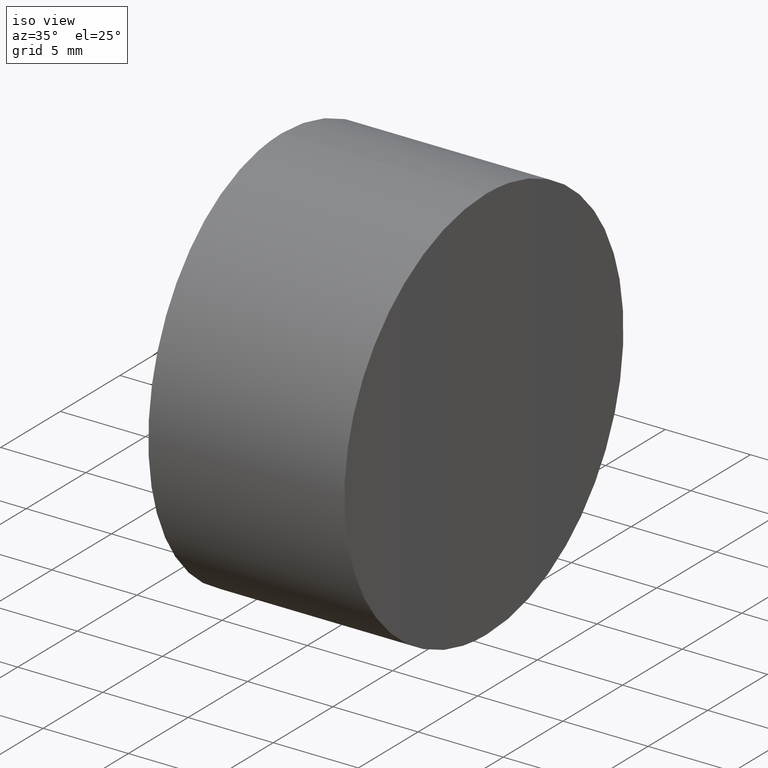
[diagram: clean part render]
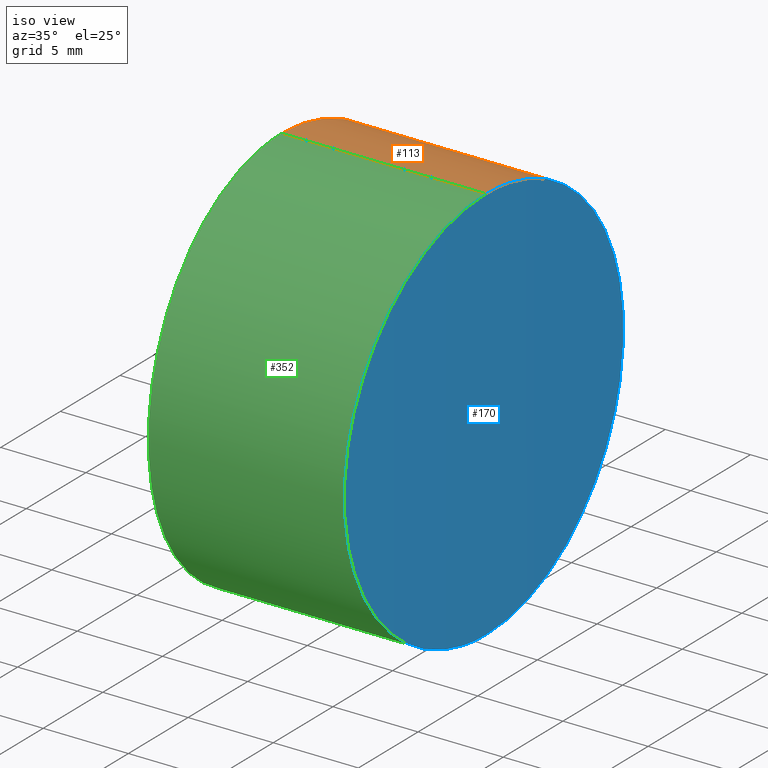
[diagram: same view with three faces highlighted in distinct colors, each labeled with its STEP entity id]
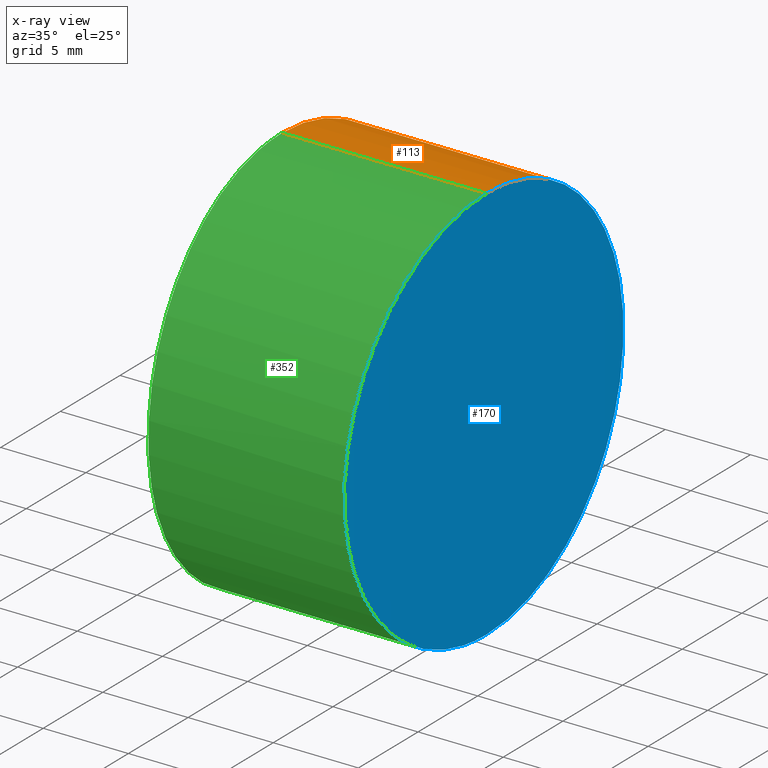
[diagram: x-ray of the same camera — body ghosted, the three highlighted faces saturated]
A machine part, iso view with three faces highlighted in distinct colors.
The next image is the same camera in x-ray (body ghosted, the three faces saturated) — at least one of them is partly hidden behind the body in this view.
Their STEP definitions:

[orange] entity #113 — the highlighted cylindrical surface (partial cylindrical patch) has radius 11.7 mm, axis along (-1, 0, 0).
#1 = CARTESIAN_POINT ( 'NONE',  ( 0.2583374684992448822, 9.935577560984455658, 17.89048050876180440 ) ) ;
#2 = CARTESIAN_POINT ( 'NONE',  ( 0.3401786562244256684, 11.39764381215303857, 14.37062356034076238 ) ) ;
#4 = CARTESIAN_POINT ( 'NONE',  ( 11.96579864609660149, 5.857284419357868366, 1.542928104321989125 ) ) ;
#6 = CARTESIAN_POINT ( 'NONE',  ( 11.90045432172797213, 9.935714473166820326, 5.509738525818470123 ) ) ;
#8 = CARTESIAN_POINT ( 'NONE',  ( 23.39999999999999858, 4.145316565267975364E-16, 0.000000000000000000 ) ) ;
#10 = CARTESIAN_POINT ( 'NONE',  ( 0.01828841934861864804, 2.670642402234625568, 0.3023606370246236241 ) ) ;
#11 = CARTESIAN_POINT ( 'NONE',  ( 11.89610216077167593, 10.15707122734554702, 17.55728553407527670 ) ) ;
#13 = CARTESIAN_POINT ( 'NONE',  ( 11.99078213179783781, 3.044950674873885266, 23.00329889858389620 ) ) ;
#23 = DIRECTION ( 'NONE',  ( -1.000000000000000000, 0.000000000000000000, 0.000000000000000000 ) ) ;
#25 = CARTESIAN_POINT ( 'NONE',  ( 0.3404086081460765967, 11.40148338416487483, 9.046450369288990601 ) ) ;
#26 = CARTESIAN_POINT ( 'NONE',  ( 0.08874062244635286256, 5.857751440177584534, 21.85679890421172544 ) ) ;
#28 = CARTESIAN_POINT ( 'NONE',  ( 0.1673559351319592325, 8.000520042296374257, 20.24558864000209013 ) ) ;
#29 = CARTESIAN_POINT ( 'NONE',  ( 4.559910881582112822E-14, 0.000000000000000000, 23.39999999999999858 ) ) ;
#30 = CARTESIAN_POINT ( 'NONE',  ( 0.1909753868514233455, 8.545590056044083838, 3.699481525973900009 ) ) ;
#31 = CARTESIAN_POINT ( 'NONE',  ( 11.91304112629796386, 9.294104164907743382, 4.551527113013929871 ) ) ;
#35 = CARTESIAN_POINT ( 'NONE',  ( 12.00000000000006573, 4.145316565267975857E-16, 5.685396098933329433E-48 ) ) ;
#37 = CARTESIAN_POINT ( 'NONE',  ( 0.02391706015313887004, 3.045399271237212879, 0.3968204477336191860 ) ) ;
#40 = CYLINDRICAL_SURFACE ( 'NONE', #271, 11.69999999999999929 ) ;
#44 = DIRECTION ( 'NONE',  ( 0.000000000000000000, 0.000000000000000000, 1.000000000000000000 ) ) ;
#46 = CARTESIAN_POINT ( 'NONE',  ( 11.97999998119463250, 4.494114777795298998, 22.52253198477025720 ) ) ;
#50 = CARTESIAN_POINT ( 'NONE',  ( 0.3345405857329071253, 11.30318434104827396, 14.74538161853043228 ) ) ;
#52 = CARTESIAN_POINT ( 'NONE',  ( 0.02357580842895731776, 3.024089344509405031, 23.00894419986126138 ) ) ;
#54 = CARTESIAN_POINT ( 'NONE',  ( 0.2688480717248624141, 10.13479930205118862, 17.55852158724343326 ) ) ;
#55 = CARTESIAN_POINT ( 'NONE',  ( 0.07002229378687654937, 5.183776251701241122, 1.204053391690247832 ) ) ;
#56 = CARTESIAN_POINT ( 'NONE',  ( 11.99091399820135706, 3.023586017320254449, 0.3909228197292762830 ) ) ;
#57 = VERTEX_POINT ( 'NONE', #341 ) ;
#58 = CARTESIAN_POINT ( 'NONE',  ( 11.86894414393554698, 11.39772222687059866, 9.029715755624447837 ) ) ;
#59 = CARTESIAN_POINT ( 'NONE',  ( 11.95330728867370418, 6.810779624940236587, 2.179009848429363405 ) ) ;
#63 = CARTESIAN_POINT ( 'NONE',  ( 11.91296101096698834, 9.291744005721012556, 18.82053955101963538 ) ) ;
#64 = ORIENTED_EDGE ( 'NONE', *, *, #227, .F. ) ;
#74 = CARTESIAN_POINT ( 'NONE',  ( 23.39999999999999858, -1.018305098475605649E-15, 11.69999999999999929 ) ) ;
#79 = CARTESIAN_POINT ( 'NONE',  ( 0.2024080958568977018, 8.809708700882115551, 19.43696692579699459 ) ) ;
#83 = CARTESIAN_POINT ( 'NONE',  ( 0.3065224976294609882, 10.82231276533389064, 16.19463903635429602 ) ) ;
#86 = CARTESIAN_POINT ( 'NONE',  ( 11.87098187852445008, 11.30907647843933539, 14.72358862174431593 ) ) ;
#87 = CARTESIAN_POINT ( 'NONE',  ( 11.87111374453593982, 11.30329961268162542, 8.655051954286340887 ) ) ;
#88 = CARTESIAN_POINT ( 'NONE',  ( 0.1559232875207755553, 7.736971049307275194, 2.890295123050315773 ) ) ;
#90 = CARTESIAN_POINT ( 'NONE',  ( 0.1326854371482225070, 7.148655793256581070, 2.406038564346927977 ) ) ;
#93 = CARTESIAN_POINT ( 'NONE',  ( 11.96549485134939061, 5.858213471806535289, 21.83497988866299622 ) ) ;
#97 = VECTOR ( 'NONE', #23, 1000.000000000000000 ) ;
#110 = CARTESIAN_POINT ( 'NONE',  ( 0.3538071033457206305, 11.62419979259791170, 10.16749382059844109 ) ) ;
#112 = CARTESIAN_POINT ( 'NONE',  ( 0.2371931424065522320, 9.520715865793969002, 4.888838393415191774 ) ) ;
#113 = ADVANCED_FACE ( 'NONE', ( #326 ), #40, .T. ) ;
#115 = CARTESIAN_POINT ( 'NONE',  ( 4.571769177407550517E-14, -2.541307647570762922E-32, 2.919881234129970241E-16 ) ) ;
#117 = CARTESIAN_POINT ( 'NONE',  ( 11.86369884757748494, 11.62423443815388069, 13.23218826134368697 ) ) ;
#118 = EDGE_LOOP ( 'NONE', ( #64, #236, #150, #205 ) ) ;
#120 = CARTESIAN_POINT ( 'NONE',  ( 11.92640016217320564, 8.545699694344646602, 19.70040565603710903 ) ) ;
#122 = CARTESIAN_POINT ( 'NONE',  ( 11.99819417617646700, 1.536662865378972231, 23.32422583959712270 ) ) ;
#123 = DIRECTION ( 'NONE',  ( -1.000000000000000000, 0.000000000000000000, 0.000000000000000000 ) ) ;
#136 = CARTESIAN_POINT ( 'NONE',  ( 0.3348818416738066905, 11.30893966401515272, 8.675893845185491671 ) ) ;
#137 = CARTESIAN_POINT ( 'NONE',  ( 0.004683139493605934997, 1.532484183187763138, 23.32420284880145545 ) ) ;
#138 = CARTESIAN_POINT ( 'NONE',  ( 0.03661705291089771552, 3.758815639899374617, 22.78641692632920979 ) ) ;
#142 = CARTESIAN_POINT ( 'NONE',  ( 0.05189326580756584845, 4.494652495588690400, 0.8776927926483676368 ) ) ;
#144 = B_SPLINE_CURVE_WITH_KNOTS ( 'NONE', 3,
 ( #29, #257, #137, #309, #52, #138, #311, #278, #26, #332, #228, #335, #28, #79, #362, #1, #54, #162, #83, #306, #50, #2, #281, #255, #277, #110, #25, #136, #307, #229, #337, #314, #112, #260, #231, #30, #88, #90, #233, #286, #55, #142, #171, #37, #10, #342, #316, #115 ),
 .UNSPECIFIED., .F., .F.,
 ( 4, 2, 2, 2, 2, 2, 2, 2, 2, 1, 2, 2, 2, 2, 2, 2, 2, 2, 2, 2, 2, 1, 2, 2, 4 ),
 ( 0.01828152708131330906, 0.02056672792505277736, 0.02170932834692251151, 0.02285192876879224566, 0.02513712961253172090, 0.02627973003440145505, 0.02742233045627119267, 0.02970753130001066444, 0.03085013172188040553, 0.03199273214375014662, 0.03313533256561987383, 0.03427793298748960105, 0.03656313383122906241, 0.03884833467496852377, 0.03999093509683825098, 0.04113353551870798513, 0.04341873636244743956, 0.04456133678431716677, 0.04570393720618688704, 0.04798913804992634147, 0.04913173847179606868, 0.05027433889366579589, 0.05141693931553552310, 0.05255953973740525031, 0.05484474058114470474 ),
 .UNSPECIFIED. ) ;
#145 = LINE ( 'NONE', #8, #344 ) ;
#146 = VERTEX_POINT ( 'NONE', #197 ) ;
#149 = CARTESIAN_POINT ( 'NONE',  ( 11.86369981649013994, 11.62422630583167837, 10.16334050048407178 ) ) ;
#150 = ORIENTED_EDGE ( 'NONE', *, *, #155, .F. ) ;
#151 = CARTESIAN_POINT ( 'NONE',  ( 11.92199646164367266, 8.809788044948872354, 3.963105866688136025 ) ) ;
#155 = EDGE_CURVE ( 'NONE', #201, #57, #144, .T. ) ;
#156 = CARTESIAN_POINT ( 'NONE',  ( 11.99295119334686177, 2.670287078555035887, 23.09772155744515132 ) ) ;
#160 = CARTESIAN_POINT ( 'NONE',  ( 11.96144692762755035, 6.190262531379142175, 21.63571380795257326 ) ) ;
#162 = CARTESIAN_POINT ( 'NONE',  ( 0.2883711932912189635, 10.49595232916330900, 16.88376473086750451 ) ) ;
#169 = CARTESIAN_POINT ( 'NONE',  ( 11.98588806299460607, 3.758232822529101735, 0.6133871211663781686 ) ) ;
#171 = CARTESIAN_POINT ( 'NONE',  ( 0.03698255608483859425, 3.777207114080399553, 0.6198812673615545776 ) ) ;
#173 = CARTESIAN_POINT ( 'NONE',  ( 11.86189348866509441, 11.69999972920494002, 12.47255012993240975 ) ) ;
#175 = CARTESIAN_POINT ( 'NONE',  ( 11.87600898028385643, 11.08661211210270103, 15.45823506775577627 ) ) ;
#177 = CARTESIAN_POINT ( 'NONE',  ( 11.92188515757921685, 8.802909189191723272, 19.41669488656452813 ) ) ;
#180 = EDGE_CURVE ( 'NONE', #146, #57, #145, .T. ) ;
#197 = CARTESIAN_POINT ( 'NONE',  ( 12.00000000000006573, 4.145316565267975857E-16, 5.685396098933329433E-48 ) ) ;
#200 = CARTESIAN_POINT ( 'NONE',  ( 11.94886146351681511, 7.148473463158253161, 20.99410369375474161 ) ) ;
#201 = VERTEX_POINT ( 'NONE', #258 ) ;
#202 = CARTESIAN_POINT ( 'NONE',  ( 11.89640585853640076, 10.13498059818199870, 5.841787745303263613 ) ) ;
#203 = DIRECTION ( 'NONE',  ( -1.000000000000000000, 0.000000000000000000, 0.000000000000000000 ) ) ;
#205 = ORIENTED_EDGE ( 'NONE', *, *, #329, .F. ) ;
#207 = CARTESIAN_POINT ( 'NONE',  ( 11.98297524554785909, 4.123375099309543046, 0.7439675968328939293 ) ) ;
#209 = CARTESIAN_POINT ( 'NONE',  ( 11.97301227319461603, 5.183327585761724698, 22.19617061425453031 ) ) ;
#212 = CARTESIAN_POINT ( 'NONE',  ( 11.98574674539198170, 3.776682911606437543, 22.78029587999899874 ) ) ;
#216 = CARTESIAN_POINT ( 'NONE',  ( 12.00000000000006573, -1.018305098475605649E-15, 23.39999999999999858 ) ) ;
#227 = EDGE_CURVE ( 'NONE', #146, #349, #363, .T. ) ;
#228 = CARTESIAN_POINT ( 'NONE',  ( 0.1324865233482153404, 7.120935428360549047, 20.99143569484871819 ) ) ;
#229 = CARTESIAN_POINT ( 'NONE',  ( 0.3142513886944202639, 10.95580707289939859, 7.576027508126629506 ) ) ;
#231 = CARTESIAN_POINT ( 'NONE',  ( 0.2026932021512520277, 8.802732466252770394, 3.983109517426784763 ) ) ;
#232 = CARTESIAN_POINT ( 'NONE',  ( 11.99304040900122459, 2.653074058219007103, 0.2984077886062099783 ) ) ;
#233 = CARTESIAN_POINT ( 'NONE',  ( 0.1000262550234437137, 6.190489251073986843, 1.764427921010063294 ) ) ;
#235 = CARTESIAN_POINT ( 'NONE',  ( 11.97337993679715673, 5.185559350148415625, 1.183943365429104055 ) ) ;
#236 = ORIENTED_EDGE ( 'NONE', *, *, #180, .T. ) ;
#237 = CARTESIAN_POINT ( 'NONE',  ( 11.94894148707029125, 7.120539056912982723, 2.408255608238688339 ) ) ;
#255 = CARTESIAN_POINT ( 'NONE',  ( 0.3584996436900924066, 11.70000178734283125, 12.47268321275936920 ) ) ;
#257 = CARTESIAN_POINT ( 'NONE',  ( 4.560398918237551329E-14, 0.7727127826928770205, 23.39999999999999858 ) ) ;
#258 = CARTESIAN_POINT ( 'NONE',  ( 4.559910881582112822E-14, 0.000000000000000000, 23.39999999999999858 ) ) ;
#259 = CARTESIAN_POINT ( 'NONE',  ( 11.94001782366196274, 7.716694686760754429, 2.897090627856640843 ) ) ;
#260 = CARTESIAN_POINT ( 'NONE',  ( 0.2258553752843850682, 9.291434513978856558, 4.579063104837104881 ) ) ;
#261 = CARTESIAN_POINT ( 'NONE',  ( 11.86885493619699439, 11.40159155744463959, 14.35307684444823551 ) ) ;
#263 = CARTESIAN_POINT ( 'NONE',  ( 11.88851963278133539, 10.51605588467203134, 16.88556081691490718 ) ) ;
#271 = AXIS2_PLACEMENT_3D ( 'NONE', #74, #123, #44 ) ;
#277 = CARTESIAN_POINT ( 'NONE',  ( 0.3584994244166042066, 11.69999821259460937, 10.92726266015646708 ) ) ;
#278 = CARTESIAN_POINT ( 'NONE',  ( 0.06907014426932693574, 5.186086964000831578, 22.21579465757199401 ) ) ;
#281 = CARTESIAN_POINT ( 'NONE',  ( 0.3538049416244755663, 11.62419739439252808, 13.23691041223250231 ) ) ;
#283 = CARTESIAN_POINT ( 'NONE',  ( 11.93990663900176230, 7.736894428032731419, 20.50978775668108511 ) ) ;
#284 = CARTESIAN_POINT ( 'NONE',  ( 11.87615029477704631, 11.08029665300275646, 7.923319338810872914 ) ) ;
#286 = CARTESIAN_POINT ( 'NONE',  ( 0.08952507690631315851, 5.858531242400483841, 1.565206311226251534 ) ) ;
#288 = CARTESIAN_POINT ( 'NONE',  ( 11.87892243440479412, 10.95603162582693635, 15.82337714776941162 ) ) ;
#291 = CARTESIAN_POINT ( 'NONE',  ( 11.93550294180889892, 8.000405588553174852, 3.154300234890239363 ) ) ;
#294 = CARTESIAN_POINT ( 'NONE',  ( 12.00000000000000888, 0.7725457323517803676, 23.39999999999998792 ) ) ;
#295 = LINE ( 'NONE', #319, #97 ) ;
#306 = CARTESIAN_POINT ( 'NONE',  ( 0.3214547361266597014, 11.08012404192007949, 15.47719163742938697 ) ) ;
#307 = CARTESIAN_POINT ( 'NONE',  ( 0.3218201948511544841, 11.08641206697578241, 7.941170150015326001 ) ) ;
#309 = CARTESIAN_POINT ( 'NONE',  ( 0.01805833903589188286, 2.653531519156004048, 23.10148763922043358 ) ) ;
#311 = CARTESIAN_POINT ( 'NONE',  ( 0.04417472697402874404, 4.123959763233888687, 22.65581191381212278 ) ) ;
#313 = CARTESIAN_POINT ( 'NONE',  ( 11.99819516585219326, 1.532184923233788076, 0.07576509983319604236 ) ) ;
#314 = CARTESIAN_POINT ( 'NONE',  ( 0.2696308357138724188, 10.15679542213603170, 5.842242846817536694 ) ) ;
#316 = CARTESIAN_POINT ( 'NONE',  ( 4.570526255913160557E-14, 0.7727082876776837361, 1.490777987167569090E-16 ) ) ;
#317 = CARTESIAN_POINT ( 'NONE',  ( 12.00000000000001243, 0.7725464155265415744, 1.084202172485511953E-16 ) ) ;
#318 = CARTESIAN_POINT ( 'NONE',  ( 11.88189831176743105, 10.82253278503196370, 7.205887108109723549 ) ) ;
#319 = CARTESIAN_POINT ( 'NONE',  ( 23.39999999999999858, -1.018305098475605649E-15, 23.39999999999999858 ) ) ;
#326 = FACE_OUTER_BOUND ( 'NONE', #118, .T. ) ;
#329 = EDGE_CURVE ( 'NONE', #349, #201, #295, .T. ) ;
#332 = CARTESIAN_POINT ( 'NONE',  ( 0.1211550322362877630, 6.811159226765689745, 21.22071761825332104 ) ) ;
#335 = CARTESIAN_POINT ( 'NONE',  ( 0.1556402619443736368, 7.716891152145591626, 20.50273193913835357 ) ) ;
#337 = CARTESIAN_POINT ( 'NONE',  ( 0.2893229383252903797, 10.51579033857531620, 6.513904697712418645 ) ) ;
#339 = CARTESIAN_POINT ( 'NONE',  ( 11.86189347587751364, 11.70000027079361971, 10.92745807228117272 ) ) ;
#340 = CARTESIAN_POINT ( 'NONE',  ( 11.88888727280963842, 10.49617138348649270, 6.516673960179250713 ) ) ;
#341 = CARTESIAN_POINT ( 'NONE',  ( 4.571769177407550517E-14, -2.541307647570762922E-32, 2.919881234129970241E-16 ) ) ;
#342 = CARTESIAN_POINT ( 'NONE',  ( 0.004685657068349319450, 1.536932628199142448, 0.07580567726889748947 ) ) ;
#344 = VECTOR ( 'NONE', #203, 1000.000000000000000 ) ;
#345 = CARTESIAN_POINT ( 'NONE',  ( 11.90859485044526345, 9.520989687313623051, 18.51078026442874958 ) ) ;
#349 = VERTEX_POINT ( 'NONE', #216 ) ;
#355 = CARTESIAN_POINT ( 'NONE',  ( 12.00000000000006573, -1.018305098475605649E-15, 23.39999999999999858 ) ) ;
#362 = CARTESIAN_POINT ( 'NONE',  ( 0.2256548676622555927, 9.293966178737345984, 18.84864982127933786 ) ) ;
#363 = B_SPLINE_CURVE_WITH_KNOTS ( 'NONE', 3,
 ( #35, #317, #313, #232, #56, #169, #207, #235, #4, #59, #237, #259, #291, #151, #31, #6, #202, #340, #318, #284, #87, #58, #149, #339, #173, #117, #261, #86, #175, #288, #263, #11, #345, #63, #177, #120, #283, #200, #160, #93, #209, #46, #212, #13, #156, #122, #294, #355 ),
 .UNSPECIFIED., .F., .F.,
 ( 4, 2, 2, 2, 2, 2, 2, 2, 2, 1, 2, 2, 2, 2, 2, 2, 2, 2, 2, 2, 2, 1, 2, 2, 4 ),
 ( -0.03655576912917313237, -0.03427103355859980466, -0.03312866577331313733, -0.03198629798802647695, -0.02970156241745314576, -0.02855919463216648191, -0.02741682684687981458, -0.02513209127630648340, -0.02398972349101981608, -0.02284735570573314528, -0.02170498792044647796, -0.02056262013515981063, -0.01827788456458647251, -0.01599314899401314133, -0.01485078120872647400, -0.01370841342343981015, -0.01142367785286648937, -0.01028131006757983940, -0.009138942282293185948, -0.006854206711719885992, -0.005711838926433236013, -0.004569471141146586035, -0.003427103355859939526, -0.002284735570573293018, 0.000000000000000000 ),
 .UNSPECIFIED. ) ;

[blue] entity #170 — the highlighted cylindrical surface (partial cylindrical patch) has radius 495.665 mm, axis along (-0, -0, -1).
#4 = CARTESIAN_POINT ( 'NONE',  ( 11.96579864609660149, 5.857284419357868366, 1.542928104321989125 ) ) ;
#6 = CARTESIAN_POINT ( 'NONE',  ( 11.90045432172797213, 9.935714473166820326, 5.509738525818470123 ) ) ;
#11 = CARTESIAN_POINT ( 'NONE',  ( 11.89610216077167593, 10.15707122734554702, 17.55728553407527670 ) ) ;
#13 = CARTESIAN_POINT ( 'NONE',  ( 11.99078213179783781, 3.044950674873885266, 23.00329889858389620 ) ) ;
#17 = CARTESIAN_POINT ( 'NONE',  ( 11.94894148707029302, -7.120539056912987164, 20.99174439176130846 ) ) ;
#19 = CARTESIAN_POINT ( 'NONE',  ( 11.90045432172797035, -9.935714473166823879, 17.89026147418152846 ) ) ;
#27 = CARTESIAN_POINT ( 'NONE',  ( 11.99295119334686177, -2.670287078555036331, 0.3022784425548426523 ) ) ;
#31 = CARTESIAN_POINT ( 'NONE',  ( 11.91304112629796386, 9.294104164907743382, 4.551527113013929871 ) ) ;
#32 = EDGE_LOOP ( 'NONE', ( #94, #116 ) ) ;
#33 = CARTESIAN_POINT ( 'NONE',  ( -483.6647798444420800, 0.000000000000000000, 23.39999999999999858 ) ) ;
#35 = CARTESIAN_POINT ( 'NONE',  ( 12.00000000000006573, 4.145316565267975857E-16, 5.685396098933329433E-48 ) ) ;
#41 = B_SPLINE_CURVE_WITH_KNOTS ( 'NONE', 3,
 ( #241, #213, #157, #69, #179, #186, #154, #243, #269, #302, #17, #125, #270, #183, #159, #19, #107, #253, #111, #196, #108, #310, #53, #282, #163, #230, #191, #84, #365, #225, #166, #141, #279, #252, #80, #254, #109, #338, #165, #364, #168, #226, #333, #139, #27, #85, #193, #51 ),
 .UNSPECIFIED., .F., .F.,
 ( 4, 2, 2, 2, 2, 2, 2, 2, 2, 1, 2, 2, 2, 2, 2, 2, 2, 2, 2, 2, 2, 1, 2, 2, 4 ),
 ( 0.000000000000000000, 0.002284737591002148922, 0.003427106386503222732, 0.004569475182004296976, 0.006854212773006442862, 0.007996581568507517973, 0.009138950364008593952, 0.01142368795501074764, 0.01256605675051183230, 0.01370842554601291348, 0.01485079434151399640, 0.01599316313701507758, 0.01827790072801724688, 0.02056263831901941619, 0.02170500711452050258, 0.02284737591002158896, 0.02513211350102376521, 0.02627448229652485159, 0.02741685109202593798, 0.02970158868302810729, 0.03084395747852919367, 0.03198632627403028006, 0.03312869506953137339, 0.03427106386503245977, 0.03655580145603462561 ),
 .UNSPECIFIED. ) ;
#46 = CARTESIAN_POINT ( 'NONE',  ( 11.97999998119463250, 4.494114777795298998, 22.52253198477025720 ) ) ;
#51 = CARTESIAN_POINT ( 'NONE',  ( 12.00000000000006573, 4.145316565267975857E-16, 5.685396098933329433E-48 ) ) ;
#53 = CARTESIAN_POINT ( 'NONE',  ( 11.86369981649014349, -11.62422630583168370, 13.23665949951593390 ) ) ;
#56 = CARTESIAN_POINT ( 'NONE',  ( 11.99091399820135706, 3.023586017320254449, 0.3909228197292762830 ) ) ;
#58 = CARTESIAN_POINT ( 'NONE',  ( 11.86894414393554698, 11.39772222687059866, 9.029715755624447837 ) ) ;
#59 = CARTESIAN_POINT ( 'NONE',  ( 11.95330728867370418, 6.810779624940236587, 2.179009848429363405 ) ) ;
#63 = CARTESIAN_POINT ( 'NONE',  ( 11.91296101096698834, 9.291744005721012556, 18.82053955101963538 ) ) ;
#69 = CARTESIAN_POINT ( 'NONE',  ( 11.99304040900122637, -2.653074058219009768, 23.10159221139378971 ) ) ;
#80 = CARTESIAN_POINT ( 'NONE',  ( 11.92188515757921863, -8.802909189191723272, 3.983305113435454015 ) ) ;
#84 = CARTESIAN_POINT ( 'NONE',  ( 11.87098187852445896, -11.30907647843933894, 8.676411378255673768 ) ) ;
#85 = CARTESIAN_POINT ( 'NONE',  ( 11.99819417617646700, -1.536662865378975118, 0.07577416040287825172 ) ) ;
#86 = CARTESIAN_POINT ( 'NONE',  ( 11.87098187852445008, 11.30907647843933539, 14.72358862174431593 ) ) ;
#87 = CARTESIAN_POINT ( 'NONE',  ( 11.87111374453593982, 11.30329961268162542, 8.655051954286340887 ) ) ;
#93 = CARTESIAN_POINT ( 'NONE',  ( 11.96549485134939061, 5.858213471806535289, 21.83497988866299622 ) ) ;
#94 = ORIENTED_EDGE ( 'NONE', *, *, #135, .T. ) ;
#107 = CARTESIAN_POINT ( 'NONE',  ( 11.89640585853640076, -10.13498059818200225, 17.55821225469673763 ) ) ;
#108 = CARTESIAN_POINT ( 'NONE',  ( 11.87111374453593626, -11.30329961268162542, 14.74494804571366302 ) ) ;
#109 = CARTESIAN_POINT ( 'NONE',  ( 11.93990663900175875, -7.736894428032726978, 2.890212243318909469 ) ) ;
#111 = CARTESIAN_POINT ( 'NONE',  ( 11.88189831176743105, -10.82253278503196370, 16.19411289189027414 ) ) ;
#114 = DIRECTION ( 'NONE',  ( -1.000000000000000000, 0.000000000000000000, 0.000000000000000000 ) ) ;
#116 = ORIENTED_EDGE ( 'NONE', *, *, #227, .T. ) ;
#117 = CARTESIAN_POINT ( 'NONE',  ( 11.86369884757748494, 11.62423443815388069, 13.23218826134368697 ) ) ;
#120 = CARTESIAN_POINT ( 'NONE',  ( 11.92640016217320564, 8.545699694344646602, 19.70040565603710903 ) ) ;
#122 = CARTESIAN_POINT ( 'NONE',  ( 11.99819417617646700, 1.536662865378972231, 23.32422583959712270 ) ) ;
#125 = CARTESIAN_POINT ( 'NONE',  ( 11.94001782366196451, -7.716694686760756206, 20.50290937214335685 ) ) ;
#135 = EDGE_CURVE ( 'NONE', #349, #146, #41, .T. ) ;
#139 = CARTESIAN_POINT ( 'NONE',  ( 11.99078213179783248, -3.044950674873887042, 0.3967011014160998772 ) ) ;
#141 = CARTESIAN_POINT ( 'NONE',  ( 11.89610216077167415, -10.15707122734554879, 5.842714465924718326 ) ) ;
#146 = VERTEX_POINT ( 'NONE', #197 ) ;
#148 = DIRECTION ( 'NONE',  ( -0.000000000000000000, -0.000000000000000000, -1.000000000000000000 ) ) ;
#149 = CARTESIAN_POINT ( 'NONE',  ( 11.86369981649013994, 11.62422630583167837, 10.16334050048407178 ) ) ;
#151 = CARTESIAN_POINT ( 'NONE',  ( 11.92199646164367266, 8.809788044948872354, 3.963105866688136025 ) ) ;
#154 = CARTESIAN_POINT ( 'NONE',  ( 11.98297524554785909, -4.123375099309543046, 22.65603240316709588 ) ) ;
#156 = CARTESIAN_POINT ( 'NONE',  ( 11.99295119334686177, 2.670287078555035887, 23.09772155744515132 ) ) ;
#157 = CARTESIAN_POINT ( 'NONE',  ( 11.99819516585218970, -1.532184923233790297, 23.32423490016680745 ) ) ;
#159 = CARTESIAN_POINT ( 'NONE',  ( 11.91304112629795675, -9.294104164907739829, 18.84847288698606604 ) ) ;
#160 = CARTESIAN_POINT ( 'NONE',  ( 11.96144692762755035, 6.190262531379142175, 21.63571380795257326 ) ) ;
#163 = CARTESIAN_POINT ( 'NONE',  ( 11.86189348866513349, -11.69999972920494713, 10.92744987006758883 ) ) ;
#165 = CARTESIAN_POINT ( 'NONE',  ( 11.96144692762755035, -6.190262531379135957, 1.764286192047425983 ) ) ;
#166 = CARTESIAN_POINT ( 'NONE',  ( 11.88851963278133539, -10.51605588467203312, 6.514439183085084295 ) ) ;
#168 = CARTESIAN_POINT ( 'NONE',  ( 11.97301227319461603, -5.183327585761721146, 1.203829385745459390 ) ) ;
#169 = CARTESIAN_POINT ( 'NONE',  ( 11.98588806299460607, 3.758232822529101735, 0.6133871211663781686 ) ) ;
#170 = ADVANCED_FACE ( 'NONE', ( #348 ), #199, .T. ) ;
#173 = CARTESIAN_POINT ( 'NONE',  ( 11.86189348866509441, 11.69999972920494002, 12.47255012993240975 ) ) ;
#175 = CARTESIAN_POINT ( 'NONE',  ( 11.87600898028385643, 11.08661211210270103, 15.45823506775577627 ) ) ;
#177 = CARTESIAN_POINT ( 'NONE',  ( 11.92188515757921685, 8.802909189191723272, 19.41669488656452813 ) ) ;
#179 = CARTESIAN_POINT ( 'NONE',  ( 11.99091399820135706, -3.023586017320257113, 23.00907718027072235 ) ) ;
#183 = CARTESIAN_POINT ( 'NONE',  ( 11.92199646164367266, -8.809788044948874131, 19.43689413331185989 ) ) ;
#186 = CARTESIAN_POINT ( 'NONE',  ( 11.98588806299460074, -3.758232822529103956, 22.78661287883361553 ) ) ;
#191 = CARTESIAN_POINT ( 'NONE',  ( 11.86885493619695708, -11.40159155744464847, 9.046923155551755968 ) ) ;
#193 = CARTESIAN_POINT ( 'NONE',  ( 12.00000000000001421, -0.7725470987019046332, -2.706740840337080291E-16 ) ) ;
#196 = CARTESIAN_POINT ( 'NONE',  ( 11.87615029477704276, -11.08029665300275823, 15.47668066118912478 ) ) ;
#197 = CARTESIAN_POINT ( 'NONE',  ( 12.00000000000006573, 4.145316565267975857E-16, 5.685396098933329433E-48 ) ) ;
#199 = CYLINDRICAL_SURFACE ( 'NONE', #366, 495.6647798444421937 ) ;
#200 = CARTESIAN_POINT ( 'NONE',  ( 11.94886146351681511, 7.148473463158253161, 20.99410369375474161 ) ) ;
#202 = CARTESIAN_POINT ( 'NONE',  ( 11.89640585853640076, 10.13498059818199870, 5.841787745303263613 ) ) ;
#207 = CARTESIAN_POINT ( 'NONE',  ( 11.98297524554785909, 4.123375099309543046, 0.7439675968328939293 ) ) ;
#209 = CARTESIAN_POINT ( 'NONE',  ( 11.97301227319461603, 5.183327585761724698, 22.19617061425453031 ) ) ;
#212 = CARTESIAN_POINT ( 'NONE',  ( 11.98574674539198170, 3.776682911606437543, 22.78029587999899874 ) ) ;
#213 = CARTESIAN_POINT ( 'NONE',  ( 12.00000000000000711, -0.7725464155265425736, 23.39999999999998792 ) ) ;
#216 = CARTESIAN_POINT ( 'NONE',  ( 12.00000000000006573, -1.018305098475605649E-15, 23.39999999999999858 ) ) ;
#225 = CARTESIAN_POINT ( 'NONE',  ( 11.87892243440479412, -10.95603162582694168, 7.576622852230584293 ) ) ;
#226 = CARTESIAN_POINT ( 'NONE',  ( 11.97999998119463250, -4.494114777795297222, 0.8774680152297440472 ) ) ;
#227 = EDGE_CURVE ( 'NONE', #146, #349, #363, .T. ) ;
#230 = CARTESIAN_POINT ( 'NONE',  ( 11.86369884757744408, -11.62423443815388602, 10.16781173865631160 ) ) ;
#232 = CARTESIAN_POINT ( 'NONE',  ( 11.99304040900122459, 2.653074058219007103, 0.2984077886062099783 ) ) ;
#235 = CARTESIAN_POINT ( 'NONE',  ( 11.97337993679715673, 5.185559350148415625, 1.183943365429104055 ) ) ;
#237 = CARTESIAN_POINT ( 'NONE',  ( 11.94894148707029125, 7.120539056912982723, 2.408255608238688339 ) ) ;
#241 = CARTESIAN_POINT ( 'NONE',  ( 12.00000000000006573, -1.018305098475605649E-15, 23.39999999999999858 ) ) ;
#243 = CARTESIAN_POINT ( 'NONE',  ( 11.97337993679715851, -5.185559350148419178, 22.21605663457089008 ) ) ;
#252 = CARTESIAN_POINT ( 'NONE',  ( 11.91296101096698834, -9.291744005721014332, 4.579460448980351650 ) ) ;
#253 = CARTESIAN_POINT ( 'NONE',  ( 11.88888727280964019, -10.49617138348649270, 16.88332603982074431 ) ) ;
#254 = CARTESIAN_POINT ( 'NONE',  ( 11.92640016217320564, -8.545699694344648378, 3.699594343962878451 ) ) ;
#259 = CARTESIAN_POINT ( 'NONE',  ( 11.94001782366196274, 7.716694686760754429, 2.897090627856640843 ) ) ;
#261 = CARTESIAN_POINT ( 'NONE',  ( 11.86885493619699439, 11.40159155744463959, 14.35307684444823551 ) ) ;
#263 = CARTESIAN_POINT ( 'NONE',  ( 11.88851963278133539, 10.51605588467203134, 16.88556081691490718 ) ) ;
#269 = CARTESIAN_POINT ( 'NONE',  ( 11.96579864609659971, -5.857284419357870142, 21.85707189567801123 ) ) ;
#270 = CARTESIAN_POINT ( 'NONE',  ( 11.93550294180890070, -8.000405588553180181, 20.24569976510975522 ) ) ;
#279 = CARTESIAN_POINT ( 'NONE',  ( 11.90859485044526167, -9.520989687313623051, 4.889219735571242786 ) ) ;
#282 = CARTESIAN_POINT ( 'NONE',  ( 11.86189347587755272, -11.70000027079362326, 12.47254192771882408 ) ) ;
#283 = CARTESIAN_POINT ( 'NONE',  ( 11.93990663900176230, 7.736894428032731419, 20.50978775668108511 ) ) ;
#284 = CARTESIAN_POINT ( 'NONE',  ( 11.87615029477704631, 11.08029665300275646, 7.923319338810872914 ) ) ;
#288 = CARTESIAN_POINT ( 'NONE',  ( 11.87892243440479412, 10.95603162582693635, 15.82337714776941162 ) ) ;
#291 = CARTESIAN_POINT ( 'NONE',  ( 11.93550294180889892, 8.000405588553174852, 3.154300234890239363 ) ) ;
#294 = CARTESIAN_POINT ( 'NONE',  ( 12.00000000000000888, 0.7725457323517803676, 23.39999999999998792 ) ) ;
#302 = CARTESIAN_POINT ( 'NONE',  ( 11.95330728867370240, -6.810779624940238364, 21.22099015157063917 ) ) ;
#310 = CARTESIAN_POINT ( 'NONE',  ( 11.86894414393555053, -11.39772222687060221, 14.37028424437554897 ) ) ;
#313 = CARTESIAN_POINT ( 'NONE',  ( 11.99819516585219326, 1.532184923233788076, 0.07576509983319604236 ) ) ;
#317 = CARTESIAN_POINT ( 'NONE',  ( 12.00000000000001243, 0.7725464155265415744, 1.084202172485511953E-16 ) ) ;
#318 = CARTESIAN_POINT ( 'NONE',  ( 11.88189831176743105, 10.82253278503196370, 7.205887108109723549 ) ) ;
#333 = CARTESIAN_POINT ( 'NONE',  ( 11.98574674539198881, -3.776682911606441095, 0.6197041200009987261 ) ) ;
#338 = CARTESIAN_POINT ( 'NONE',  ( 11.94886146351680978, -7.148473463158244279, 2.405896306245256966 ) ) ;
#339 = CARTESIAN_POINT ( 'NONE',  ( 11.86189347587751364, 11.70000027079361971, 10.92745807228117272 ) ) ;
#340 = CARTESIAN_POINT ( 'NONE',  ( 11.88888727280963842, 10.49617138348649270, 6.516673960179250713 ) ) ;
#345 = CARTESIAN_POINT ( 'NONE',  ( 11.90859485044526345, 9.520989687313623051, 18.51078026442874958 ) ) ;
#348 = FACE_OUTER_BOUND ( 'NONE', #32, .T. ) ;
#349 = VERTEX_POINT ( 'NONE', #216 ) ;
#355 = CARTESIAN_POINT ( 'NONE',  ( 12.00000000000006573, -1.018305098475605649E-15, 23.39999999999999858 ) ) ;
#363 = B_SPLINE_CURVE_WITH_KNOTS ( 'NONE', 3,
 ( #35, #317, #313, #232, #56, #169, #207, #235, #4, #59, #237, #259, #291, #151, #31, #6, #202, #340, #318, #284, #87, #58, #149, #339, #173, #117, #261, #86, #175, #288, #263, #11, #345, #63, #177, #120, #283, #200, #160, #93, #209, #46, #212, #13, #156, #122, #294, #355 ),
 .UNSPECIFIED., .F., .F.,
 ( 4, 2, 2, 2, 2, 2, 2, 2, 2, 1, 2, 2, 2, 2, 2, 2, 2, 2, 2, 2, 2, 1, 2, 2, 4 ),
 ( -0.03655576912917313237, -0.03427103355859980466, -0.03312866577331313733, -0.03198629798802647695, -0.02970156241745314576, -0.02855919463216648191, -0.02741682684687981458, -0.02513209127630648340, -0.02398972349101981608, -0.02284735570573314528, -0.02170498792044647796, -0.02056262013515981063, -0.01827788456458647251, -0.01599314899401314133, -0.01485078120872647400, -0.01370841342343981015, -0.01142367785286648937, -0.01028131006757983940, -0.009138942282293185948, -0.006854206711719885992, -0.005711838926433236013, -0.004569471141146586035, -0.003427103355859939526, -0.002284735570573293018, 0.000000000000000000 ),
 .UNSPECIFIED. ) ;
#364 = CARTESIAN_POINT ( 'NONE',  ( 11.96549485134938529, -5.858213471806530848, 1.565020111337001030 ) ) ;
#365 = CARTESIAN_POINT ( 'NONE',  ( 11.87600898028386176, -11.08661211210270814, 7.941764932244219644 ) ) ;
#366 = AXIS2_PLACEMENT_3D ( 'NONE', #33, #148, #114 ) ;

[green] entity #352 — the highlighted cylindrical surface (partial cylindrical patch) has radius 11.7 mm, axis along (-1, 0, 0).
#8 = CARTESIAN_POINT ( 'NONE',  ( 23.39999999999999858, 4.145316565267975364E-16, 0.000000000000000000 ) ) ;
#14 = CARTESIAN_POINT ( 'NONE',  ( 0.01828862948277321446, -2.670657741237604910, 23.09763584588865726 ) ) ;
#17 = CARTESIAN_POINT ( 'NONE',  ( 11.94894148707029302, -7.120539056912987164, 20.99174439176130846 ) ) ;
#19 = CARTESIAN_POINT ( 'NONE',  ( 11.90045432172797035, -9.935714473166823879, 17.89026147418152846 ) ) ;
#22 = CARTESIAN_POINT ( 'NONE',  ( 0.1211538041874622162, -6.811124736514065248, 2.179257800876255313 ) ) ;
#23 = DIRECTION ( 'NONE',  ( -1.000000000000000000, 0.000000000000000000, 0.000000000000000000 ) ) ;
#24 = CARTESIAN_POINT ( 'NONE',  ( 4.558858377064731308E-14, -0.7727127826993872572, 23.39999999999999858 ) ) ;
#27 = CARTESIAN_POINT ( 'NONE',  ( 11.99295119334686177, -2.670287078555036331, 0.3022784425548426523 ) ) ;
#36 = CARTESIAN_POINT ( 'NONE',  ( 0.004683085032211964024, -1.532475342305965826, 0.07579627774698513565 ) ) ;
#38 = CARTESIAN_POINT ( 'NONE',  ( 0.1324851878251786519, -7.120899588900803323, 2.408536920844716711 ) ) ;
#41 = B_SPLINE_CURVE_WITH_KNOTS ( 'NONE', 3,
 ( #241, #213, #157, #69, #179, #186, #154, #243, #269, #302, #17, #125, #270, #183, #159, #19, #107, #253, #111, #196, #108, #310, #53, #282, #163, #230, #191, #84, #365, #225, #166, #141, #279, #252, #80, #254, #109, #338, #165, #364, #168, #226, #333, #139, #27, #85, #193, #51 ),
 .UNSPECIFIED., .F., .F.,
 ( 4, 2, 2, 2, 2, 2, 2, 2, 2, 1, 2, 2, 2, 2, 2, 2, 2, 2, 2, 2, 2, 1, 2, 2, 4 ),
 ( 0.000000000000000000, 0.002284737591002148922, 0.003427106386503222732, 0.004569475182004296976, 0.006854212773006442862, 0.007996581568507517973, 0.009138950364008593952, 0.01142368795501074764, 0.01256605675051183230, 0.01370842554601291348, 0.01485079434151399640, 0.01599316313701507758, 0.01827790072801724688, 0.02056263831901941619, 0.02170500711452050258, 0.02284737591002158896, 0.02513211350102376521, 0.02627448229652485159, 0.02741685109202593798, 0.02970158868302810729, 0.03084395747852919367, 0.03198632627403028006, 0.03312869506953137339, 0.03427106386503245977, 0.03655580145603462561 ),
 .UNSPECIFIED. ) ;
#47 = CARTESIAN_POINT ( 'NONE',  ( 0.2258572472340499016, -9.291472971536039793, 18.82088685353322433 ) ) ;
#49 = CARTESIAN_POINT ( 'NONE',  ( 0.04417423176171183380, -4.123936680598489168, 0.7441794719831668070 ) ) ;
#51 = CARTESIAN_POINT ( 'NONE',  ( 12.00000000000006573, 4.145316565267975857E-16, 5.685396098933329433E-48 ) ) ;
#53 = CARTESIAN_POINT ( 'NONE',  ( 11.86369981649014349, -11.62422630583168370, 13.23665949951593390 ) ) ;
#57 = VERTEX_POINT ( 'NONE', #341 ) ;
#61 = EDGE_LOOP ( 'NONE', ( #346, #66, #238, #343 ) ) ;
#65 = CYLINDRICAL_SURFACE ( 'NONE', #215, 11.69999999999999929 ) ;
#66 = ORIENTED_EDGE ( 'NONE', *, *, #135, .F. ) ;
#69 = CARTESIAN_POINT ( 'NONE',  ( 11.99304040900122637, -2.653074058219009768, 23.10159221139378971 ) ) ;
#72 = CARTESIAN_POINT ( 'NONE',  ( 0.004685711583734535925, -1.536941520492479896, 23.32419344934778138 ) ) ;
#76 = CARTESIAN_POINT ( 'NONE',  ( 0.2688461668612495137, -10.13476345582216709, 5.841416531613713659 ) ) ;
#78 = CARTESIAN_POINT ( 'NONE',  ( 0.2696327360444312760, -10.15683106980765160, 17.55769587602879511 ) ) ;
#80 = CARTESIAN_POINT ( 'NONE',  ( 11.92188515757921863, -8.802909189191723272, 3.983305113435454015 ) ) ;
#84 = CARTESIAN_POINT ( 'NONE',  ( 11.87098187852445896, -11.30907647843933894, 8.676411378255673768 ) ) ;
#85 = CARTESIAN_POINT ( 'NONE',  ( 11.99819417617646700, -1.536662865378975118, 0.07577416040287825172 ) ) ;
#91 = CARTESIAN_POINT ( 'NONE',  ( 0.02357553998314664001, -3.024072136590172377, 0.3910512772373815338 ) ) ;
#96 = CARTESIAN_POINT ( 'NONE',  ( 0.3538079010176019557, -11.62421281636200021, 13.23240951220729755 ) ) ;
#97 = VECTOR ( 'NONE', #23, 1000.000000000000000 ) ;
#98 = CARTESIAN_POINT ( 'NONE',  ( 0.3142530698112762089, -10.95583632843685606, 15.82389500539943938 ) ) ;
#101 = CARTESIAN_POINT ( 'NONE',  ( 0.08952602445483213989, -5.858562225071722196, 21.83477586700820794 ) ) ;
#103 = CARTESIAN_POINT ( 'NONE',  ( 0.3404098460631784784, -11.40150407917839459, 14.35346101549901654 ) ) ;
#105 = CARTESIAN_POINT ( 'NONE',  ( 0.1326867550864878065, -7.148691173889913486, 20.99393456110323086 ) ) ;
#106 = EDGE_CURVE ( 'NONE', #57, #201, #124, .T. ) ;
#107 = CARTESIAN_POINT ( 'NONE',  ( 11.89640585853640076, -10.13498059818200225, 17.55821225469673763 ) ) ;
#108 = CARTESIAN_POINT ( 'NONE',  ( 11.87111374453593626, -11.30329961268162542, 14.74494804571366302 ) ) ;
#109 = CARTESIAN_POINT ( 'NONE',  ( 11.93990663900175875, -7.736894428032726978, 2.890212243318909469 ) ) ;
#111 = CARTESIAN_POINT ( 'NONE',  ( 11.88189831176743105, -10.82253278503196370, 16.19411289189027414 ) ) ;
#124 = B_SPLINE_CURVE_WITH_KNOTS ( 'NONE', 3,
 ( #320, #289, #36, #262, #91, #208, #49, #129, #246, #22, #38, #188, #360, #275, #296, #356, #76, #251, #132, #249, #350, #353, #323, #358, #322, #96, #103, #161, #266, #98, #331, #78, #190, #47, #222, #134, #217, #105, #220, #101, #327, #224, #305, #152, #14, #72, #24, #276 ),
 .UNSPECIFIED., .F., .F.,
 ( 4, 2, 2, 2, 2, 2, 2, 2, 2, 1, 2, 2, 2, 2, 2, 2, 2, 2, 2, 2, 2, 1, 2, 2, 4 ),
 ( 0.05484474058114470474, 0.05712994142490343541, 0.05827254184678280075, 0.05941514226866216608, 0.06170034311242089675, 0.06284294353430026903, 0.06398554395617962742, 0.06627074479993835809, 0.06741334522181771649, 0.06855594564369707489, 0.06969854606557643328, 0.07084114648745579168, 0.07312634733121452235, 0.07541154817497323914, 0.07655414859685259754, 0.07769674901873196982, 0.07998194986249068661, 0.08112455028437004501, 0.08226715070624941728, 0.08455235155000814795, 0.08569495197188750635, 0.08683755239376686474, 0.08798015281564625090, 0.08912275323752560929, 0.09140795408128432609 ),
 .UNSPECIFIED. ) ;
#125 = CARTESIAN_POINT ( 'NONE',  ( 11.94001782366196451, -7.716694686760756206, 20.50290937214335685 ) ) ;
#129 = CARTESIAN_POINT ( 'NONE',  ( 0.06906939684451847417, -5.186058986216571576, 1.184191855007755478 ) ) ;
#132 = CARTESIAN_POINT ( 'NONE',  ( 0.3065203718556885337, -10.82228209107901229, 7.205287369281685450 ) ) ;
#134 = CARTESIAN_POINT ( 'NONE',  ( 0.1909770891494943224, -8.545628098470910317, 19.70047795007164382 ) ) ;
#135 = EDGE_CURVE ( 'NONE', #349, #146, #41, .T. ) ;
#139 = CARTESIAN_POINT ( 'NONE',  ( 11.99078213179783248, -3.044950674873887042, 0.3967011014160998772 ) ) ;
#141 = CARTESIAN_POINT ( 'NONE',  ( 11.89610216077167415, -10.15707122734554879, 5.842714465924718326 ) ) ;
#145 = LINE ( 'NONE', #8, #344 ) ;
#146 = VERTEX_POINT ( 'NONE', #197 ) ;
#152 = CARTESIAN_POINT ( 'NONE',  ( 0.02391733196188592855, -3.045416550865220007, 23.00317496979894116 ) ) ;
#153 = CARTESIAN_POINT ( 'NONE',  ( 23.39999999999999858, -1.018305098475605649E-15, 11.69999999999999929 ) ) ;
#154 = CARTESIAN_POINT ( 'NONE',  ( 11.98297524554785909, -4.123375099309543046, 22.65603240316709588 ) ) ;
#157 = CARTESIAN_POINT ( 'NONE',  ( 11.99819516585218970, -1.532184923233790297, 23.32423490016680745 ) ) ;
#159 = CARTESIAN_POINT ( 'NONE',  ( 11.91304112629795675, -9.294104164907739829, 18.84847288698606604 ) ) ;
#161 = CARTESIAN_POINT ( 'NONE',  ( 0.3348832094766158174, -11.30896271518269991, 14.72402018924531042 ) ) ;
#163 = CARTESIAN_POINT ( 'NONE',  ( 11.86189348866513349, -11.69999972920494713, 10.92744987006758883 ) ) ;
#165 = CARTESIAN_POINT ( 'NONE',  ( 11.96144692762755035, -6.190262531379135957, 1.764286192047425983 ) ) ;
#166 = CARTESIAN_POINT ( 'NONE',  ( 11.88851963278133539, -10.51605588467203312, 6.514439183085084295 ) ) ;
#168 = CARTESIAN_POINT ( 'NONE',  ( 11.97301227319461603, -5.183327585761721146, 1.203829385745459390 ) ) ;
#179 = CARTESIAN_POINT ( 'NONE',  ( 11.99091399820135706, -3.023586017320257113, 23.00907718027072235 ) ) ;
#180 = EDGE_CURVE ( 'NONE', #146, #57, #145, .T. ) ;
#183 = CARTESIAN_POINT ( 'NONE',  ( 11.92199646164367266, -8.809788044948874131, 19.43689413331185989 ) ) ;
#186 = CARTESIAN_POINT ( 'NONE',  ( 11.98588806299460074, -3.758232822529103956, 22.78661287883361553 ) ) ;
#187 = DIRECTION ( 'NONE',  ( -1.000000000000000000, 0.000000000000000000, 0.000000000000000000 ) ) ;
#188 = CARTESIAN_POINT ( 'NONE',  ( 0.1556387689904809302, -7.716854189056987501, 2.897235744872689089 ) ) ;
#190 = CARTESIAN_POINT ( 'NONE',  ( 0.2371950226966852149, -9.520753545022664355, 18.51110905243059790 ) ) ;
#191 = CARTESIAN_POINT ( 'NONE',  ( 11.86885493619695708, -11.40159155744464847, 9.046923155551755968 ) ) ;
#193 = CARTESIAN_POINT ( 'NONE',  ( 12.00000000000001421, -0.7725470987019046332, -2.706740840337080291E-16 ) ) ;
#196 = CARTESIAN_POINT ( 'NONE',  ( 11.87615029477704276, -11.08029665300275823, 15.47668066118912478 ) ) ;
#197 = CARTESIAN_POINT ( 'NONE',  ( 12.00000000000006573, 4.145316565267975857E-16, 5.685396098933329433E-48 ) ) ;
#201 = VERTEX_POINT ( 'NONE', #258 ) ;
#203 = DIRECTION ( 'NONE',  ( -1.000000000000000000, 0.000000000000000000, 0.000000000000000000 ) ) ;
#208 = CARTESIAN_POINT ( 'NONE',  ( 0.03661663858924214809, -3.758794381502488680, 0.6135759462773281436 ) ) ;
#213 = CARTESIAN_POINT ( 'NONE',  ( 12.00000000000000711, -0.7725464155265425736, 23.39999999999998792 ) ) ;
#215 = AXIS2_PLACEMENT_3D ( 'NONE', #153, #187, #304 ) ;
#216 = CARTESIAN_POINT ( 'NONE',  ( 12.00000000000006573, -1.018305098475605649E-15, 23.39999999999999858 ) ) ;
#217 = CARTESIAN_POINT ( 'NONE',  ( 0.1559247766721120199, -7.737007858354031598, 20.50967295122812928 ) ) ;
#220 = CARTESIAN_POINT ( 'NONE',  ( 0.1000273059300455097, -6.190521725562442512, 21.63555192461745236 ) ) ;
#222 = CARTESIAN_POINT ( 'NONE',  ( 0.2026949681708056783, -8.802770766572269423, 19.41684692039357785 ) ) ;
#224 = CARTESIAN_POINT ( 'NONE',  ( 0.05189345613456830542, -4.494677088921451791, 22.52229710341722679 ) ) ;
#225 = CARTESIAN_POINT ( 'NONE',  ( 11.87892243440479412, -10.95603162582694168, 7.576622852230584293 ) ) ;
#226 = CARTESIAN_POINT ( 'NONE',  ( 11.97999998119463250, -4.494114777795297222, 0.8774680152297440472 ) ) ;
#230 = CARTESIAN_POINT ( 'NONE',  ( 11.86369884757744408, -11.62423443815388602, 10.16781173865631160 ) ) ;
#238 = ORIENTED_EDGE ( 'NONE', *, *, #329, .T. ) ;
#241 = CARTESIAN_POINT ( 'NONE',  ( 12.00000000000006573, -1.018305098475605649E-15, 23.39999999999999858 ) ) ;
#243 = CARTESIAN_POINT ( 'NONE',  ( 11.97337993679715851, -5.185559350148419178, 22.21605663457089008 ) ) ;
#246 = CARTESIAN_POINT ( 'NONE',  ( 0.08873968446164799684, -5.857720589991173732, 1.543183654131029980 ) ) ;
#249 = CARTESIAN_POINT ( 'NONE',  ( 0.3214531500796944941, -11.08009675323683574, 7.922728567130905120 ) ) ;
#251 = CARTESIAN_POINT ( 'NONE',  ( 0.2883693503445649009, -10.49591884553274745, 6.516167619462591709 ) ) ;
#252 = CARTESIAN_POINT ( 'NONE',  ( 11.91296101096698834, -9.291744005721014332, 4.579460448980351650 ) ) ;
#253 = CARTESIAN_POINT ( 'NONE',  ( 11.88888727280964019, -10.49617138348649270, 16.88332603982074431 ) ) ;
#254 = CARTESIAN_POINT ( 'NONE',  ( 11.92640016217320564, -8.545699694344648378, 3.699594343962878451 ) ) ;
#258 = CARTESIAN_POINT ( 'NONE',  ( 4.559910881582112822E-14, 0.000000000000000000, 23.39999999999999858 ) ) ;
#262 = CARTESIAN_POINT ( 'NONE',  ( 0.01805813284939798008, -2.653516375595482035, 0.2985089107936947928 ) ) ;
#266 = CARTESIAN_POINT ( 'NONE',  ( 0.3218217903353463027, -11.08643950043718895, 15.45874912723656713 ) ) ;
#268 = FACE_OUTER_BOUND ( 'NONE', #61, .T. ) ;
#269 = CARTESIAN_POINT ( 'NONE',  ( 11.96579864609659971, -5.857284419357870142, 21.85707189567801123 ) ) ;
#270 = CARTESIAN_POINT ( 'NONE',  ( 11.93550294180890070, -8.000405588553180181, 20.24569976510975522 ) ) ;
#275 = CARTESIAN_POINT ( 'NONE',  ( 0.2024063344442453005, -8.809670499079260253, 3.962989993522655574 ) ) ;
#276 = CARTESIAN_POINT ( 'NONE',  ( 4.559910881582112822E-14, 0.000000000000000000, 23.39999999999999858 ) ) ;
#279 = CARTESIAN_POINT ( 'NONE',  ( 11.90859485044526167, -9.520989687313623051, 4.889219735571242786 ) ) ;
#282 = CARTESIAN_POINT ( 'NONE',  ( 11.86189347587755272, -11.70000027079362326, 12.47254192771882408 ) ) ;
#289 = CARTESIAN_POINT ( 'NONE',  ( 4.572170911552425699E-14, -0.7727082876842013004, 3.071906155375605428E-16 ) ) ;
#295 = LINE ( 'NONE', #319, #97 ) ;
#296 = CARTESIAN_POINT ( 'NONE',  ( 0.2256530079673970957, -9.293928023442306952, 4.551301120403278944 ) ) ;
#302 = CARTESIAN_POINT ( 'NONE',  ( 11.95330728867370240, -6.810779624940238364, 21.22099015157063917 ) ) ;
#304 = DIRECTION ( 'NONE',  ( 0.000000000000000000, 0.000000000000000000, 1.000000000000000000 ) ) ;
#305 = CARTESIAN_POINT ( 'NONE',  ( 0.03698296832274575868, -3.777228148288986898, 22.78011163670956307 ) ) ;
#310 = CARTESIAN_POINT ( 'NONE',  ( 11.86894414393555053, -11.39772222687060221, 14.37028424437554897 ) ) ;
#319 = CARTESIAN_POINT ( 'NONE',  ( 23.39999999999999858, -1.018305098475605649E-15, 23.39999999999999858 ) ) ;
#320 = CARTESIAN_POINT ( 'NONE',  ( 4.571769177407550517E-14, -2.541307647570762922E-32, 2.919881234129970241E-16 ) ) ;
#322 = CARTESIAN_POINT ( 'NONE',  ( 0.3584998614300796693, -11.70000533708975432, 12.47262467282035914 ) ) ;
#323 = CARTESIAN_POINT ( 'NONE',  ( 0.3538041364806479017, -11.62418425166281288, 10.16299216870878830 ) ) ;
#327 = CARTESIAN_POINT ( 'NONE',  ( 0.07002304802444314635, -5.183804147066389589, 22.19593291634367915 ) ) ;
#329 = EDGE_CURVE ( 'NONE', #349, #201, #295, .T. ) ;
#331 = CARTESIAN_POINT ( 'NONE',  ( 0.2893247965807574928, -10.51582397519874235, 16.88602784478219831 ) ) ;
#333 = CARTESIAN_POINT ( 'NONE',  ( 11.98574674539198881, -3.776682911606441095, 0.6197041200009987261 ) ) ;
#338 = CARTESIAN_POINT ( 'NONE',  ( 11.94886146351680978, -7.148473463158244279, 2.405896306245256966 ) ) ;
#341 = CARTESIAN_POINT ( 'NONE',  ( 4.571769177407550517E-14, -2.541307647570762922E-32, 2.919881234129970241E-16 ) ) ;
#343 = ORIENTED_EDGE ( 'NONE', *, *, #106, .F. ) ;
#344 = VECTOR ( 'NONE', #203, 1000.000000000000000 ) ;
#346 = ORIENTED_EDGE ( 'NONE', *, *, #180, .F. ) ;
#349 = VERTEX_POINT ( 'NONE', #216 ) ;
#350 = CARTESIAN_POINT ( 'NONE',  ( 0.3345392029616972573, -11.30316102344688289, 8.654532151427368092 ) ) ;
#352 = ADVANCED_FACE ( 'NONE', ( #268 ), #65, .T. ) ;
#353 = CARTESIAN_POINT ( 'NONE',  ( 0.3401773941661719869, -11.39762270699285018, 9.029286653990176603 ) ) ;
#356 = CARTESIAN_POINT ( 'NONE',  ( 0.2583355465329575940, -9.935540652889567781, 5.509460412952904562 ) ) ;
#358 = CARTESIAN_POINT ( 'NONE',  ( 0.3584992066463472127, -11.69999466235201169, 10.92721369453514058 ) ) ;
#360 = CARTESIAN_POINT ( 'NONE',  ( 0.1673543689816237579, -8.000482656717435859, 3.154376453690868498 ) ) ;
#364 = CARTESIAN_POINT ( 'NONE',  ( 11.96549485134938529, -5.858213471806530848, 1.565020111337001030 ) ) ;
#365 = CARTESIAN_POINT ( 'NONE',  ( 11.87600898028386176, -11.08661211210270814, 7.941764932244219644 ) ) ;